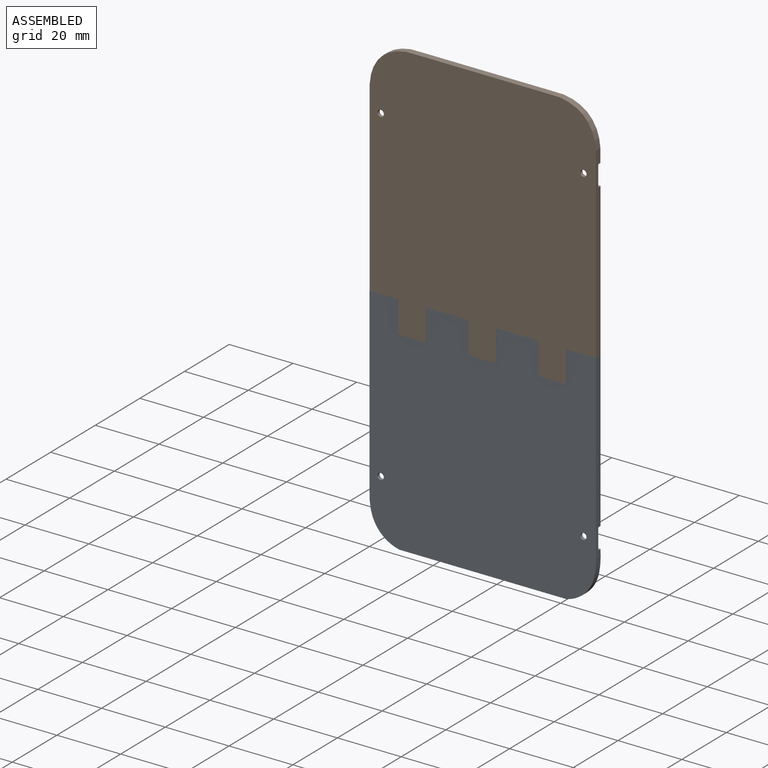
[diagram: assembled view]
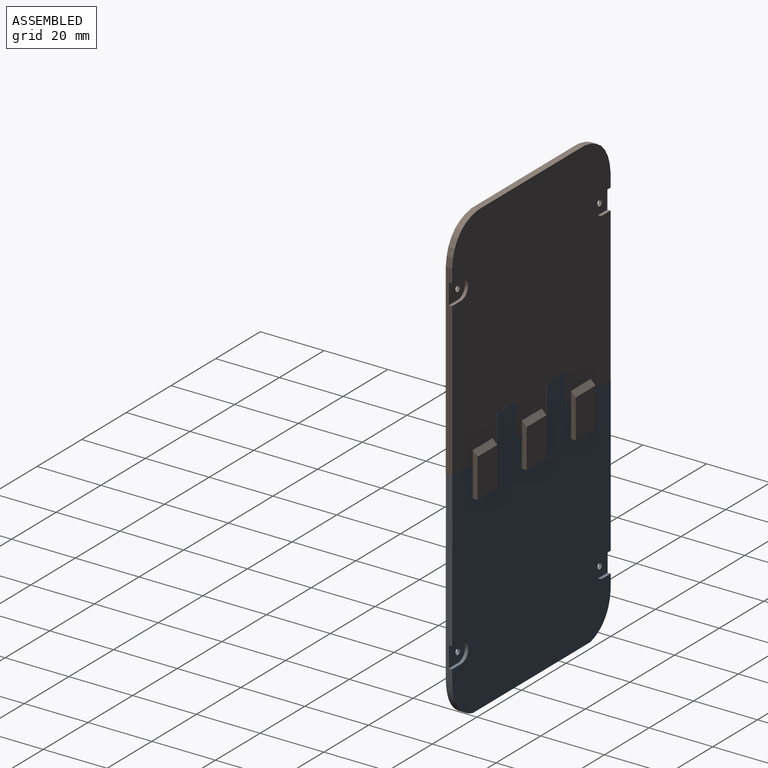
[diagram: assembled view, second angle]
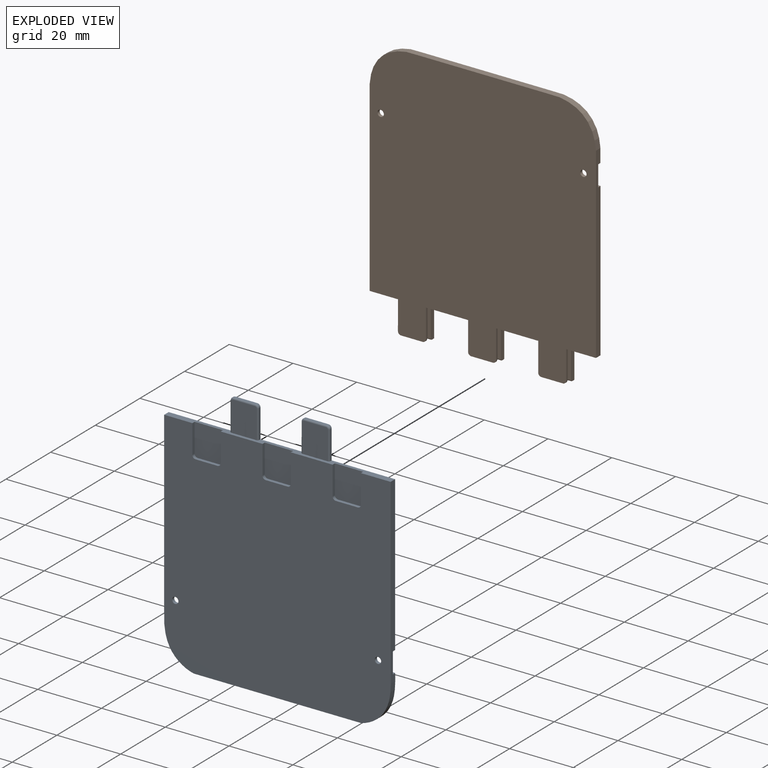
[diagram: exploded view]
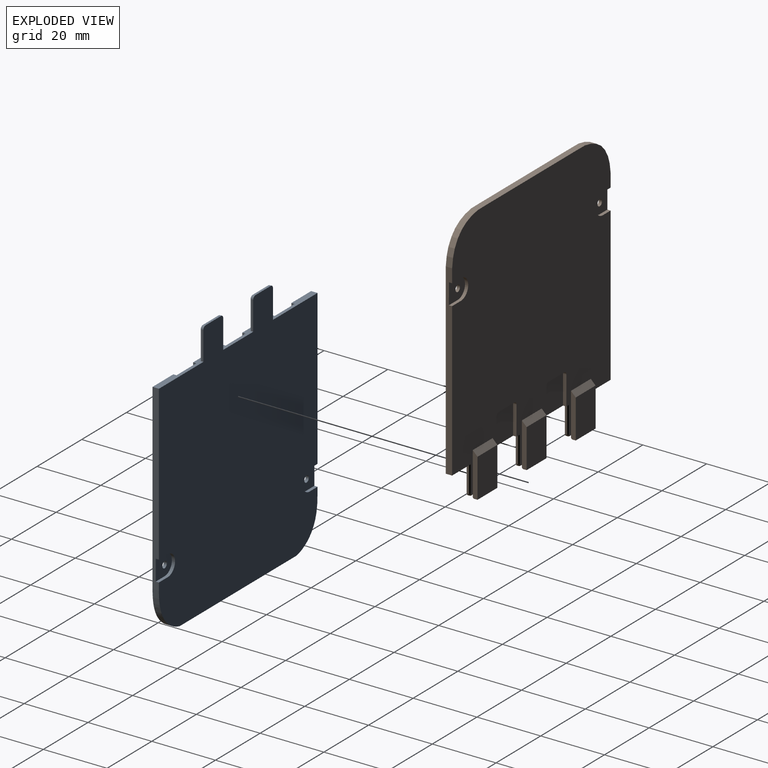
[diagram: exploded view, second angle]
ASSEMBLY  parts=2 mates=2
PART A: 58 faces, bbox 71.3x2x81 mm
  f0: plane 71.03x2mm, normal (0,0,1), area 97.1mm2, adj f1,f2,f6,f7,f18,f19,f20,f22
  f1: plane 71.27x70.89mm, normal (0,-1,0), area 4709mm2, adj f0,f2,f3,f4,f5,f6,f16,f17
  f2: plane 54.71x2mm, normal (-1,0,0), area 103.2mm2, adj f0,f1,f3,f7,f8,f10
  f3: extruded ~16.18x9.36mm, area 41mm2, adj f1,f2,f4,f7,f8,f11
  f4: plane 52.42x2mm, normal (0,0,-1), area 104.8mm2, adj f1,f3,f5,f7
  f5: extruded ~16.18x9.36mm, area 41mm2, adj f1,f4,f6,f7,f12,f14
  f6: plane 54.68x2mm, normal (1,0,0), area 103.1mm2, adj f0,f1,f5,f7,f12,f15
  f7: plane 80.89x71.27mm, normal (0,1,0), area 5075.5mm2, adj f0,f2,f3,f4,f5,f6,f9,f10
  f8: plane 6.75x6.5mm, normal (0,1,0), area 36.1mm2, adj f2,f3,f9,f10,f11,f17
  f9: cylinder r=3.25mm len=6.5mm, axis (0,1,0), area 10.2mm2, adj f7,f8,f10,f11
  f10: plane 3.49x1mm, normal (0,0,-1), area 3.5mm2, adj f2,f7,f8,f9
  f11: plane 3.5x1mm, normal (0,0,1), area 3.5mm2, adj f3,f7,f8,f9
  f12: plane 7.26x6.5mm, normal (0,1,0), area 39.4mm2, adj f5,f6,f13,f14,f15,f16
  f13: cylinder r=3.25mm len=6.5mm, axis (0,1,0), area 10.2mm2, adj f7,f12,f14,f15
  f14: plane 4.01x1mm, normal (0,0,1), area 4mm2, adj f5,f7,f12,f13
  f15: plane 4x1mm, normal (0,0,-1), area 4mm2, adj f6,f7,f12,f13
  f16: cylinder r=1mm len=2mm, axis (0,1,0), area 6.3mm2, adj f1,f12
  f17: cylinder r=1mm len=2mm, axis (0,1,0), area 6.3mm2, adj f1,f8
  f18: plane 9x1mm, normal (-1,0,0), area 9mm2, adj f0,f1,f19,f43
  f19: plane 10x8.88mm, normal (0,-1,0), area 88.4mm2, adj f0,f18,f20,f21,f42,f43
  f20: plane 9x1mm, normal (1,0,0), area 9mm2, adj f0,f1,f19,f42
  f21: plane 6.88x1mm, normal (0,0,1), area 6.9mm2, adj f1,f19,f42,f43
  f22: plane 9x1mm, normal (-1,0,0), area 9mm2, adj f0,f1,f23,f45
  f23: plane 10x8.88mm, normal (0,-1,0), area 88.4mm2, adj f0,f22,f24,f25,f44,f45
  f24: plane 9x1mm, normal (1,0,0), area 9mm2, adj f0,f1,f23,f44
  f25: plane 6.88x1mm, normal (0,0,1), area 6.9mm2, adj f1,f23,f44,f45
  f26: plane 9x1mm, normal (-1,0,0), area 9mm2, adj f0,f1,f27,f47
  f27: plane 10x8.88mm, normal (0,-1,0), area 88.4mm2, adj f0,f26,f28,f29,f46,f47
  f28: plane 9x1mm, normal (1,0,0), area 9mm2, adj f0,f1,f27,f46
  f29: plane 6.88x1mm, normal (0,0,1), area 6.9mm2, adj f1,f27,f46,f47
  f30: plane 9x0.54mm, normal (1,0,0), area 4.9mm2, adj f0,f7,f41,f48
  f31: plane 9x0.54mm, normal (-1,0,0), area 4.9mm2, adj f0,f7,f40,f52
  f32: plane 9.5x7.87mm, normal (0,-1,0), area 74.6mm2, adj f0,f48,f49,f50,f51,f52
  f33: plane 6.86x0.54mm, normal (0,0,1), area 3.7mm2, adj f7,f40,f41,f50
  f34: plane 9.5x7.92mm, normal (0,-1,0), area 75.1mm2, adj f0,f53,f54,f55,f56,f57
  f35: plane 9x0.54mm, normal (1,0,0), area 4.9mm2, adj f0,f7,f39,f57
  f36: plane 9x0.54mm, normal (-1,0,0), area 4.9mm2, adj f0,f7,f38,f53
  f37: plane 6.92x0.54mm, normal (0,0,1), area 3.7mm2, adj f7,f38,f39,f55
  f38: cylinder r=1mm len=1mm, axis (0,1,0), area 0.9mm2, adj f7,f36,f37,f54
  f39: cylinder r=1mm len=1mm, axis (0,-1,0), area 0.9mm2, adj f7,f35,f37,f56
  f40: cylinder r=1mm len=1mm, axis (0,1,0), area 0.9mm2, adj f7,f31,f33,f51
  f41: cylinder r=1mm len=1mm, axis (0,-1,0), area 0.9mm2, adj f7,f30,f33,f49
  f42: cylinder r=1mm len=1mm, axis (0,-1,0), area 1.6mm2, adj f1,f19,f20,f21
  f43: cylinder r=1mm len=1mm, axis (0,1,0), area 1.6mm2, adj f1,f18,f19,f21
  f44: cylinder r=1mm len=1mm, axis (0,-1,0), area 1.6mm2, adj f1,f23,f24,f25
  f45: cylinder r=1mm len=1mm, axis (0,1,0), area 1.6mm2, adj f1,f22,f23,f25
  f46: cylinder r=1mm len=1mm, axis (0,-1,0), area 1.6mm2, adj f1,f27,f28,f29
  f47: cylinder r=1mm len=1mm, axis (0,1,0), area 1.6mm2, adj f1,f26,f27,f29
  f48: cylinder r=0.5mm len=9mm, axis (0,0,1), area 7.1mm2, adj f0,f30,f32,f49
  f49: torus R=0.5mm, axis (0,1,0), area 1mm2, adj f32,f41,f48,f50
  f50: cylinder r=0.5mm len=6.87mm, axis (-1,0,0), area 5.4mm2, adj f32,f33,f49,f51
  f51: torus R=0.5mm, axis (0,1,0), area 1mm2, adj f32,f40,f50,f52
  f52: cylinder r=0.5mm len=9mm, axis (0,0,-1), area 7.1mm2, adj f0,f31,f32,f51
  f53: cylinder r=0.5mm len=9mm, axis (0,0,1), area 7.1mm2, adj f0,f34,f36,f54
  f54: torus R=0.5mm, axis (0,-1,0), area 1mm2, adj f34,f38,f53,f55
  f55: cylinder r=0.5mm len=6.92mm, axis (-1,0,0), area 5.4mm2, adj f34,f37,f54,f56
  f56: torus R=0.5mm, axis (0,-1,0), area 1mm2, adj f34,f39,f55,f57
  f57: cylinder r=0.5mm len=9mm, axis (0,0,-1), area 7.1mm2, adj f0,f34,f35,f56
PART B: 98 faces, bbox 71x3.5x81 mm
  f0: plane 71.03x2mm, normal (0,0,-1), area 97.3mm2, adj f1,f2,f3,f4,f32,f33,f34,f36
  f1: plane 58.72x2mm, normal (-1,0,0), area 110.9mm2, adj f0,f3,f4,f13,f27,f28,f29
  f2: plane 58.75x2mm, normal (1,0,0), area 111mm2, adj f0,f3,f4,f14,f23,f24,f25
  f3: plane 80.9x71.03mm, normal (0,-1,0), area 5222.1mm2, adj f0,f1,f2,f5,f6,f7,f8,f9
  f4: plane 71.03x70.9mm, normal (0,1,0), area 4608mm2, adj f0,f1,f2,f5,f6,f7,f8,f9
  f5: plane 40.4x2mm, normal (0,0,1), area 80.8mm2, adj f3,f4,f6,f21
  f6: plane 3.83x2mm, normal (-0.01,0,1), area 7.7mm2, adj f3,f4,f5,f7
  f7: plane 2.75x2mm, normal (-0.2,0,0.98), area 5.6mm2, adj f3,f4,f6,f8
  f8: plane 2.42x2mm, normal (-0.37,0,0.93), area 5.2mm2, adj f3,f4,f7,f9
  f9: plane 2.04x2mm, normal (-0.55,0,0.84), area 4.9mm2, adj f3,f4,f8,f10
  f10: plane 2x1.77mm, normal (-0.72,0,0.69), area 4.9mm2, adj f3,f4,f9,f11
  f11: plane 2.35x2mm, normal (-0.86,0,0.51), area 5.5mm2, adj f3,f4,f10,f12
  f12: plane 2.35x2mm, normal (-0.95,0,0.31), area 4.9mm2, adj f3,f4,f11,f13
  f13: plane 2.79x2mm, normal (-0.99,0,0.14), area 5.6mm2, adj f1,f3,f4,f12
  f14: plane 2.79x2mm, normal (0.99,0,0.14), area 5.6mm2, adj f2,f3,f4,f15
  f15: plane 2.35x2mm, normal (0.95,0,0.31), area 4.9mm2, adj f3,f4,f14,f16
  f16: plane 2.35x2mm, normal (0.86,0,0.51), area 5.5mm2, adj f3,f4,f15,f17
  f17: plane 2x1.77mm, normal (0.72,0,0.69), area 4.9mm2, adj f3,f4,f16,f18
  f18: plane 2.04x2mm, normal (0.55,0,0.84), area 4.9mm2, adj f3,f4,f17,f19
  f19: plane 2.42x2mm, normal (0.37,0,0.93), area 5.2mm2, adj f3,f4,f18,f20
  f20: plane 2.75x2mm, normal (0.2,0,0.98), area 5.6mm2, adj f3,f4,f19,f21
  f21: plane 3.83x2mm, normal (0.01,0,1), area 7.7mm2, adj f3,f4,f5,f20
  f22: cylinder r=3.25mm len=6.5mm, axis (0,1,0), area 10.2mm2, adj f4,f23,f24,f25
  f23: plane 3.96x1mm, normal (0,0,1), area 4mm2, adj f2,f4,f22,f25
  f24: plane 3.95x1mm, normal (0,0,-1), area 4mm2, adj f2,f4,f22,f25
  f25: plane 7.21x6.5mm, normal (0,1,0), area 39.2mm2, adj f2,f22,f23,f24,f31
  f26: cylinder r=3.25mm len=6.5mm, axis (0,1,0), area 10.2mm2, adj f4,f27,f28,f29
  f27: plane 3.44x1mm, normal (0,0,-1), area 3.4mm2, adj f1,f4,f26,f29
  f28: plane 3.45x1mm, normal (0,0,1), area 3.4mm2, adj f1,f4,f26,f29
  f29: plane 6.7x6.5mm, normal (0,1,0), area 35.8mm2, adj f1,f26,f27,f28,f30
  f30: cylinder r=1mm len=2mm, axis (0,1,0), area 6.3mm2, adj f3,f29
  f31: cylinder r=1mm len=2mm, axis (0,1,0), area 6.3mm2, adj f3,f25
  f32: plane 9x0.5mm, normal (1,0,0), area 4.5mm2, adj f0,f3,f61,f80
  f33: plane 9x0.5mm, normal (-1,0,0), area 4.5mm2, adj f0,f3,f60,f84
  f34: plane 9.5x7.77mm, normal (0,1,0), area 73.6mm2, adj f0,f80,f81,f82,f83,f84
  f35: plane 6.76x0.5mm, normal (0,0,-1), area 3.4mm2, adj f3,f60,f61,f82
  f36: plane 9x0.5mm, normal (1,0,0), area 4.5mm2, adj f0,f3,f59,f85
  f37: plane 9x0.5mm, normal (-1,0,0), area 4.5mm2, adj f0,f3,f58,f89
  f38: plane 9.5x7.77mm, normal (0,1,0), area 73.6mm2, adj f0,f85,f86,f87,f88,f89
  f39: plane 6.76x0.5mm, normal (0,0,-1), area 3.4mm2, adj f3,f58,f59,f87
  f40: plane 9x0.5mm, normal (1,0,0), area 4.5mm2, adj f0,f3,f57,f90
  f41: plane 9x0.5mm, normal (-1,0,0), area 4.5mm2, adj f0,f3,f56,f94
  f42: plane 9.5x7.77mm, normal (0,1,0), area 73.6mm2, adj f0,f90,f91,f92,f93,f94
  f43: plane 6.76x0.5mm, normal (0,0,-1), area 3.4mm2, adj f3,f56,f57,f92
  f44: plane 9x1.04mm, normal (-1,0,0), area 9.4mm2, adj f0,f4,f45,f53
  f45: plane 10x9.02mm, normal (0,1,0), area 89.7mm2, adj f0,f44,f46,f47,f52,f53
  f46: plane 9x1.04mm, normal (1,0,0), area 9.4mm2, adj f0,f4,f45,f52
  f47: plane 7.02x1.04mm, normal (0,0,-1), area 7.3mm2, adj f4,f45,f52,f53
  f48: plane 9x1.04mm, normal (-1,0,0), area 9.4mm2, adj f0,f4,f49,f55
  f49: plane 10x9.02mm, normal (0,1,0), area 89.7mm2, adj f0,f48,f50,f51,f54,f55
  f50: plane 9x1.04mm, normal (1,0,0), area 9.4mm2, adj f0,f4,f49,f54
  f51: plane 7.02x1.04mm, normal (0,0,-1), area 7.3mm2, adj f4,f49,f54,f55
  f52: cylinder r=1mm len=1.04mm, axis (0,1,0), area 1.6mm2, adj f4,f45,f46,f47
  f53: cylinder r=1mm len=1.04mm, axis (0,-1,0), area 1.6mm2, adj f4,f44,f45,f47
  f54: cylinder r=1mm len=1.04mm, axis (0,1,0), area 1.6mm2, adj f4,f49,f50,f51
  f55: cylinder r=1mm len=1.04mm, axis (0,-1,0), area 1.6mm2, adj f4,f48,f49,f51
  f56: cylinder r=1mm len=1mm, axis (0,-1,0), area 0.8mm2, adj f3,f41,f43,f93
  f57: cylinder r=1mm len=1mm, axis (0,1,0), area 0.8mm2, adj f3,f40,f43,f91
  f58: cylinder r=1mm len=1mm, axis (0,-1,0), area 0.8mm2, adj f3,f37,f39,f88
  f59: cylinder r=1mm len=1mm, axis (0,1,0), area 0.8mm2, adj f3,f36,f39,f86
  f60: cylinder r=1mm len=1mm, axis (0,-1,0), area 0.8mm2, adj f3,f33,f35,f83
  f61: cylinder r=1mm len=1mm, axis (0,1,0), area 0.8mm2, adj f3,f32,f35,f81
  f62: plane 13.69x1.5mm, normal (1,0,0), area 19.4mm2, adj f4,f63,f65,f66,f79,f97
  f63: plane 8.89x1mm, normal (0,0,-1), area 8.9mm2, adj f62,f64,f65,f97
  f64: plane 13.69x1.5mm, normal (-1,0,0), area 19.4mm2, adj f4,f63,f65,f66,f79,f97
  f65: plane 12.19x8.89mm, normal (0,1,0), area 108.3mm2, adj f62,f63,f64,f79
  f66: plane 9.51x8.89mm, normal (0,-1,0), area 84.5mm2, adj f0,f62,f64,f97
  f67: plane 13.69x1.5mm, normal (-1,0,0), area 19.4mm2, adj f4,f69,f70,f71,f78,f96
  f68: plane 13.69x1.5mm, normal (1,0,0), area 19.4mm2, adj f4,f69,f70,f71,f78,f96
  f69: plane 8.89x1mm, normal (0,0,-1), area 8.9mm2, adj f67,f68,f70,f96
  f70: plane 12.19x8.89mm, normal (0,1,0), area 108.3mm2, adj f67,f68,f69,f78
  f71: plane 9.52x8.89mm, normal (0,-1,0), area 84.6mm2, adj f0,f67,f68,f96
  f72: plane 13.69x1.5mm, normal (-1,0,0), area 19.4mm2, adj f4,f74,f75,f76,f77,f95
  f73: plane 13.69x1.5mm, normal (1,0,0), area 19.4mm2, adj f4,f74,f75,f76,f77,f95
  f74: plane 8.89x1mm, normal (0,0,-1), area 8.9mm2, adj f72,f73,f75,f95
  f75: plane 12.19x8.89mm, normal (0,1,0), area 108.3mm2, adj f72,f73,f74,f77
  f76: plane 9.53x8.89mm, normal (0,-1,0), area 84.6mm2, adj f0,f72,f73,f95
  f77: plane 8.89x1.5mm, normal (0,0.71,0.71), area 18.9mm2, adj f4,f72,f73,f75
  f78: plane 8.89x1.5mm, normal (0,0.71,0.71), area 18.9mm2, adj f4,f67,f68,f70
  f79: plane 8.89x1.5mm, normal (0,0.71,0.71), area 18.9mm2, adj f4,f62,f64,f65
  f80: cylinder r=0.5mm len=9mm, axis (0,0,-1), area 7.1mm2, adj f0,f32,f34,f81
  f81: torus R=0.5mm, axis (0,-1,0), area 1mm2, adj f34,f61,f80,f82
  f82: cylinder r=0.5mm len=6.76mm, axis (-1,0,0), area 5.3mm2, adj f34,f35,f81,f83
  f83: torus R=0.5mm, axis (0,-1,0), area 1mm2, adj f34,f60,f82,f84
  f84: cylinder r=0.5mm len=9mm, axis (0,0,1), area 7.1mm2, adj f0,f33,f34,f83
  f85: cylinder r=0.5mm len=9mm, axis (0,0,-1), area 7.1mm2, adj f0,f36,f38,f86
  f86: torus R=0.5mm, axis (0,-1,0), area 1mm2, adj f38,f59,f85,f87
  f87: cylinder r=0.5mm len=6.76mm, axis (-1,0,0), area 5.3mm2, adj f38,f39,f86,f88
  f88: torus R=0.5mm, axis (0,-1,0), area 1mm2, adj f38,f58,f87,f89
  f89: cylinder r=0.5mm len=9mm, axis (0,0,1), area 7.1mm2, adj f0,f37,f38,f88
  f90: cylinder r=0.5mm len=9mm, axis (0,0,-1), area 7.1mm2, adj f0,f40,f42,f91
  f91: torus R=0.5mm, axis (0,-1,0), area 1mm2, adj f42,f57,f90,f92
  f92: cylinder r=0.5mm len=6.76mm, axis (-1,0,0), area 5.3mm2, adj f42,f43,f91,f93
  f93: torus R=0.5mm, axis (0,-1,0), area 1mm2, adj f42,f56,f92,f94
  f94: cylinder r=0.5mm len=9mm, axis (0,0,1), area 7.1mm2, adj f0,f41,f42,f93
  f95: cylinder r=0.5mm len=8.89mm, axis (-1,0,0), area 7mm2, adj f72,f73,f74,f76
  f96: cylinder r=0.5mm len=8.89mm, axis (-1,0,0), area 7mm2, adj f67,f68,f69,f71
  f97: cylinder r=0.5mm len=8.89mm, axis (-1,0,0), area 7mm2, adj f62,f63,f64,f66
PLACE A t=(15.58,-5.33,8.06)mm
PLACE B t=(15.61,-5.34,8.06)mm
MATE slider B.f49 <-> A.f7  axis (0,1,0) through (-14.63,-0.38,13.89)mm
MATE parallel A.f7 <-> B.f66  axis (0,1,0) through (-3.52,0.67,-29.52)mm
